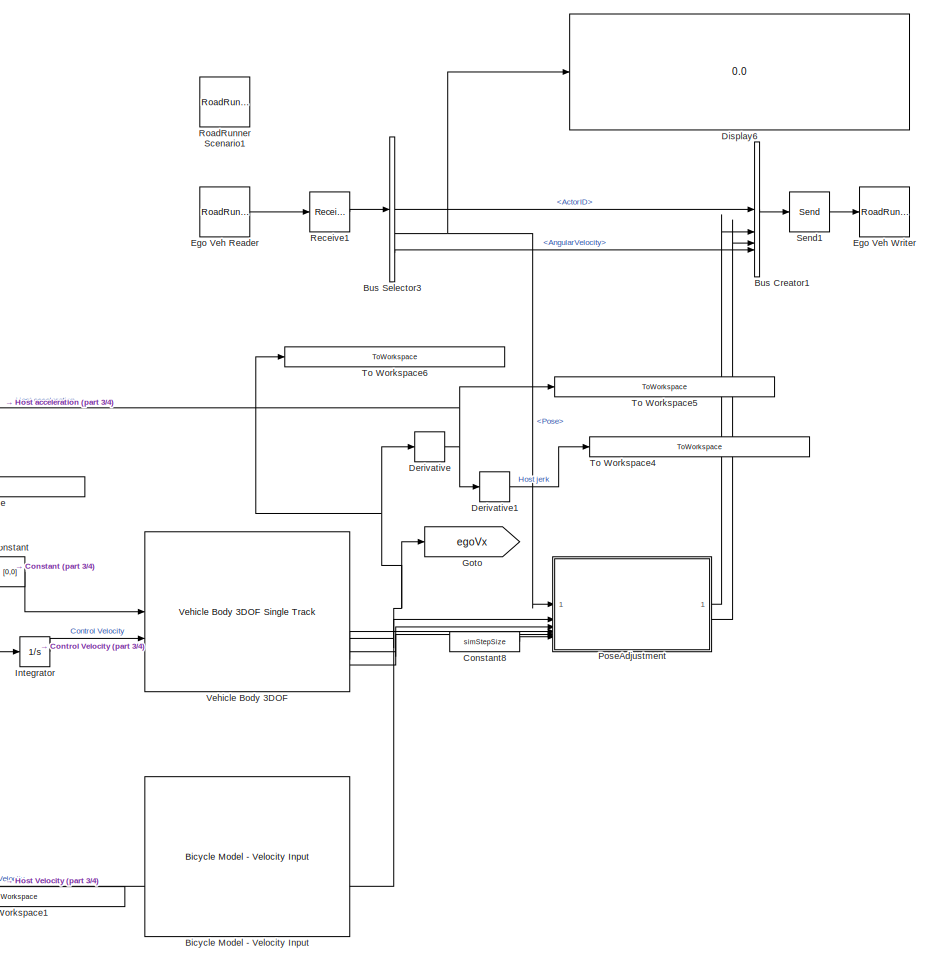
[diagram: root canvas - part 1/4, right side, full height]
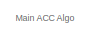
[diagram: root canvas - part 2/4, middle left region]
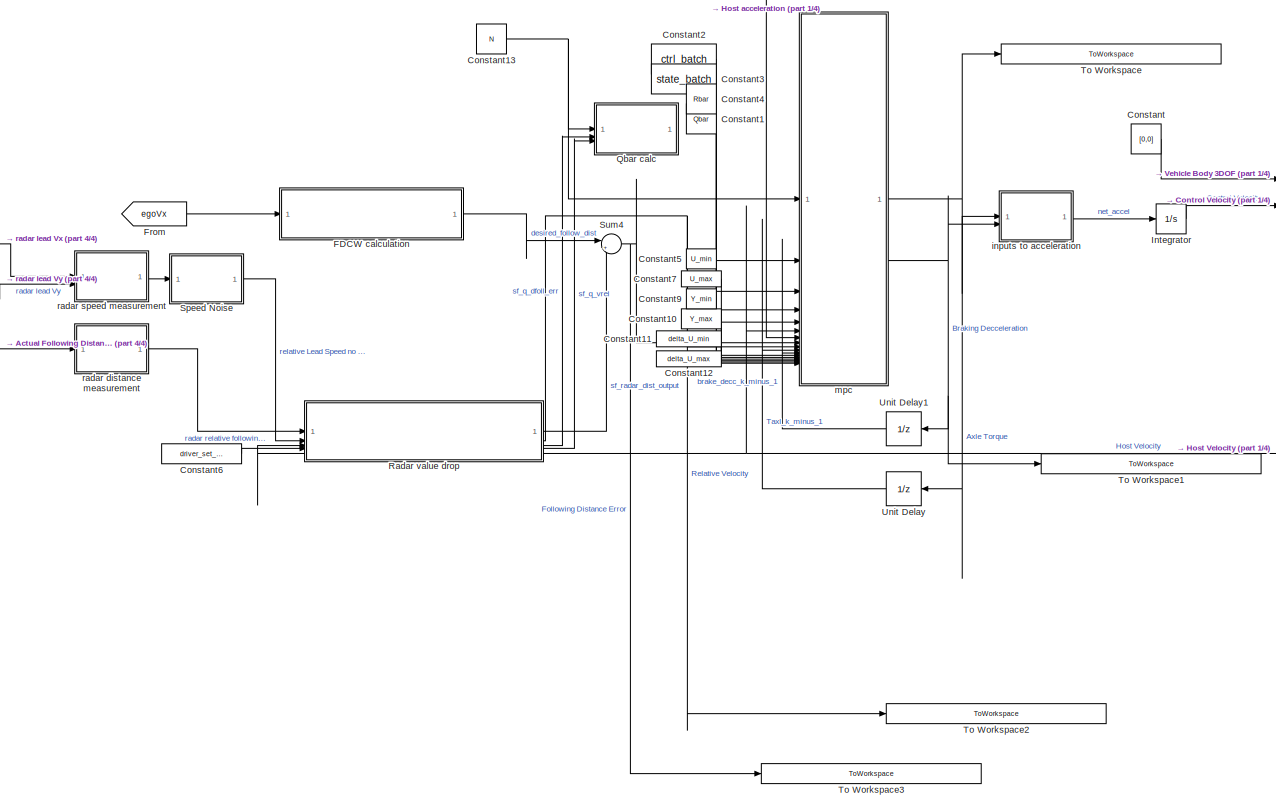
[diagram: root canvas - part 3/4, bottom center region]
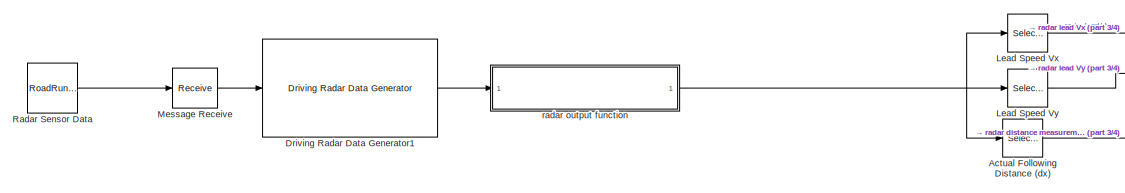
[diagram: root canvas - part 4/4, middle left region]
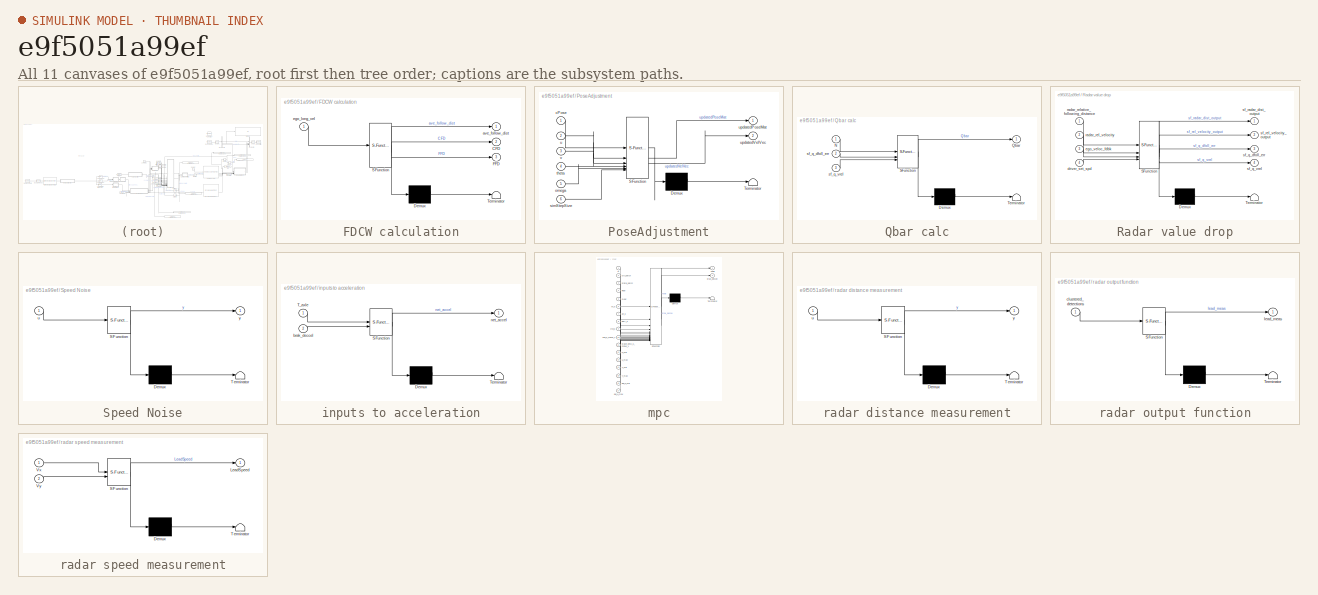
[diagram: thumbnail index - all 11 canvases of the model, root first then tree order]
MODEL slx_e9f5051a99ef
KIND model
CONFIG AbsTol = auto
CONFIG EnableMultiTasking = off
CONFIG FixedStep = .05
CONFIG MaxStep = auto
CONFIG MinStep = auto
CONFIG RelTol = 1e-3
CONFIG SampleTimeConstraint = Unconstrained
CONFIG SolverName = FixedStepAuto
CONFIG StartTime = 0
CONFIG StopTime = 100
BLOCK [Selector] Actual Following Distance (dx)
  IndexOptions = Index vector (dialog)
  Indices = [1]
  InputPortWidth = 6
  OutputSizes = 1
BLOCK [Reference] Bicycle Model - Velocity Input  REF=autolibshared/Bicycle Model - Velocity Input
  Commented = on
  LibrarySourceBlock = drivingscenarioandsensors/Bicycle Model - Velocity Input
  SourceBlock = autolibshared/Bicycle Model - Velocity Input
  SourceType = Vehicle Body 3DOF Lateral
BLOCK [BusCreator] Bus Creator1
  DisplayOption = bar
  InheritFromInputs = off
  Inputs = 4
  NonVirtualBus = on
  OutDataTypeStr = Bus: BusActorRuntime
BLOCK [BusSelector] Bus Selector3
  OutputSignals = ActorID,Pose,Velocity,AngularVelocity
BLOCK [Constant] Constant
  Value = [0,0]
BLOCK [Constant] Constant1
  Value = Qbar
BLOCK [Constant] Constant10
  Value = Y_max
BLOCK [Constant] Constant11
  Value = delta_U_min
BLOCK [Constant] Constant12
  Value = delta_U_max
BLOCK [Constant] Constant13
  Value = N
BLOCK [Constant] Constant2
  Value = ctrl_batch
BLOCK [Constant] Constant3
  Value = state_batch
BLOCK [Constant] Constant4
  Value = Rbar
BLOCK [Constant] Constant5
  Value = U_min
BLOCK [Constant] Constant6
  Value = driver_set_spd
BLOCK [Constant] Constant7
  Value = U_max
BLOCK [Constant] Constant8
  Value = simStepSize
BLOCK [Constant] Constant9
  Value = Y_min
BLOCK [Derivative] Derivative
BLOCK [Derivative] Derivative1
BLOCK [Display] Display6
  Decimation = 1
BLOCK [Reference] Driving Radar Data Generator1  REF=drivingscenarioandsensors/Driving Radar Data Generator
  SourceBlock = drivingscenarioandsensors/Driving Radar Data Generator
  SourceType = drivingRadarDataGenerator
BLOCK [Reference] Ego Veh Reader  REF=roadrunnerscenario/RoadRunner Scenario
Reader
  SourceBlock = roadrunnerscenario/RoadRunner Scenario\nReader
BLOCK [Reference] Ego Veh Writer  REF=roadrunnerscenario/RoadRunner Scenario
Writer
  SourceBlock = roadrunnerscenario/RoadRunner Scenario\nWriter
BLOCK [SubSystem] FDCW calculation
  ErrorFcn = Stateflow.Translate.translate
  PermitHierarchicalResolution = ExplicitOnly
  SFBlockType = MATLAB Function
  TreatAsAtomicUnit = on
BLOCK [Demux] FDCW calculation/ Demux 
  Outputs = 1
BLOCK [S-Function] FDCW calculation/ SFunction 
  EnableBusSupport = on
  FunctionName = sf_sfun
  PortCounts = [1 4]
  SFcnIsStateOwnerBlock = off
  SFunctionDeploymentMode = off
  Tag = Stateflow S-Function 23
BLOCK [Terminator] FDCW calculation/ Terminator 
BLOCK [Outport] FDCW calculation/CFD
  Port = 2
BLOCK [Outport] FDCW calculation/FFD
  Port = 3
BLOCK [Outport] FDCW calculation/ave_follow_dist
BLOCK [Inport] FDCW calculation/ego_long_vel
BLOCK [From] From
  GotoTag = egoVx
BLOCK [Goto] Goto
  GotoTag = egoVx
BLOCK [Integrator] Integrator
BLOCK [Selector] Lead Speed Vx
  IndexOptions = Index vector (dialog)
  Indices = 4
  InputPortWidth = 6
  OutputSizes = 1
BLOCK [Selector] Lead Speed Vy
  IndexOptions = Index vector (dialog)
  Indices = 5
  InputPortWidth = 6
  NameLocation = top
  OutputSizes = 1
BLOCK [Receive] Message Receive
  InputPortMap = u0
  InputPortMessageModes = m
  OutputPortMap = o1
  UseInternalQueue = off
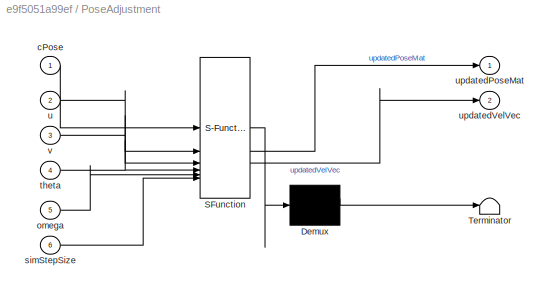
BLOCK [SubSystem] PoseAdjustment
  ErrorFcn = Stateflow.Translate.translate
  PermitHierarchicalResolution = ExplicitOnly
  SFBlockType = MATLAB Function
  TreatAsAtomicUnit = on
BLOCK [Demux] PoseAdjustment/ Demux 
  Outputs = 1
BLOCK [S-Function] PoseAdjustment/ SFunction 
  EnableBusSupport = on
  FunctionName = sf_sfun
  PortCounts = [6 3]
  SFcnIsStateOwnerBlock = off
  SFunctionDeploymentMode = off
  Tag = Stateflow S-Function 12
BLOCK [Terminator] PoseAdjustment/ Terminator 
BLOCK [Inport] PoseAdjustment/cPose
BLOCK [Inport] PoseAdjustment/omega
  Port = 5
BLOCK [Inport] PoseAdjustment/simStepSize
  Port = 6
BLOCK [Inport] PoseAdjustment/theta
  Port = 4
BLOCK [Inport] PoseAdjustment/u
  Port = 2
BLOCK [Outport] PoseAdjustment/updatedPoseMat
BLOCK [Outport] PoseAdjustment/updatedVelVec
  Port = 2
BLOCK [Inport] PoseAdjustment/v
  Port = 3
BLOCK [SubSystem] Qbar calc
  ErrorFcn = Stateflow.Translate.translate
  PermitHierarchicalResolution = ExplicitOnly
  SFBlockType = MATLAB Function
  SystemSampleTime = simStepSize
  TreatAsAtomicUnit = on
BLOCK [Demux] Qbar calc/ Demux 
  Outputs = 1
BLOCK [S-Function] Qbar calc/ SFunction 
  EnableBusSupport = on
  FunctionName = sf_sfun
  PortCounts = [3 2]
  SFcnIsStateOwnerBlock = off
  SFunctionDeploymentMode = off
  Tag = Stateflow S-Function 4
BLOCK [Terminator] Qbar calc/ Terminator 
BLOCK [Inport] Qbar calc/N
BLOCK [Outport] Qbar calc/Qbar
BLOCK [Inport] Qbar calc/sf_q_dfoll_err
  Port = 2
BLOCK [Inport] Qbar calc/sf_q_vrel
  Port = 3
BLOCK [Reference] Radar Sensor Data  REF=roadrunnerscenario/RoadRunner Scenario
Reader
  SourceBlock = roadrunnerscenario/RoadRunner Scenario\nReader
BLOCK [SubSystem] Radar value drop
  ErrorFcn = Stateflow.Translate.translate
  PermitHierarchicalResolution = ExplicitOnly
  SFBlockType = Chart
  TreatAsAtomicUnit = on
BLOCK [Demux] Radar value drop/ Demux 
  Outputs = 1
BLOCK [S-Function] Radar value drop/ SFunction 
  EnableBusSupport = on
  FunctionName = sf_sfun
  PortCounts = [4 5]
  SFcnIsStateOwnerBlock = off
  SFunctionDeploymentMode = off
  Tag = Stateflow S-Function 3
BLOCK [Terminator] Radar value drop/ Terminator 
BLOCK [Inport] Radar value drop/driver_set_spd
  Port = 4
BLOCK [Inport] Radar value drop/ego_veloc_fdbk
  Port = 3
BLOCK [Inport] Radar value drop/radar_rel_velocity
  Port = 2
BLOCK [Inport] Radar value drop/radar_relative_following_distance
BLOCK [Outport] Radar value drop/sf_q_dfoll_err
  Port = 3
BLOCK [Outport] Radar value drop/sf_q_vrel
  Port = 4
BLOCK [Outport] Radar value drop/sf_radar_dist_output
BLOCK [Outport] Radar value drop/sf_rel_velocity_output
  Port = 2
BLOCK [Receive] Receive1
  InputPortMap = u0
  InputPortMessageModes = m
  OutputPortMap = o1
  QueueLength = 1
  QueueOverwriting = on
  QueueType = LIFO
  UseInternalQueue = off
BLOCK [Reference] RoadRunner Scenario1  REF=roadrunnerscenario/RoadRunner Scenario
  SourceBlock = roadrunnerscenario/RoadRunner Scenario
BLOCK [Send] Send1
  InputPortMap = u1
  OutputPortMessageModes = m
BLOCK [SubSystem] Speed Noise
  ErrorFcn = Stateflow.Translate.translate
  PermitHierarchicalResolution = ExplicitOnly
  SFBlockType = MATLAB Function
  TreatAsAtomicUnit = on
BLOCK [Demux] Speed Noise/ Demux 
  Outputs = 1
BLOCK [S-Function] Speed Noise/ SFunction 
  EnableBusSupport = on
  FunctionName = sf_sfun
  PortCounts = [1 2]
  SFcnIsStateOwnerBlock = off
  SFunctionDeploymentMode = off
  Tag = Stateflow S-Function 15
BLOCK [Terminator] Speed Noise/ Terminator 
BLOCK [Inport] Speed Noise/u
BLOCK [Outport] Speed Noise/y
BLOCK [Sum] Sum4
  Inputs = |+-
BLOCK [ToWorkspace] To Workspace
  FixptAsFi = on
  MaxDataPoints = inf
  SampleTime = -1
  SaveFormat = Timeseries
  VariableName = AxleTorque
BLOCK [ToWorkspace] To Workspace1
  FixptAsFi = on
  MaxDataPoints = inf
  SampleTime = -1
  SaveFormat = Timeseries
  VariableName = BrakeDeccel
BLOCK [ToWorkspace] To Workspace2
  FixptAsFi = on
  MaxDataPoints = inf
  SampleTime = -1
  SaveFormat = Timeseries
  VariableName = relativeVel
BLOCK [ToWorkspace] To Workspace3
  FixptAsFi = on
  MaxDataPoints = inf
  SampleTime = -1
  SaveFormat = Timeseries
  VariableName = DistError
BLOCK [ToWorkspace] To Workspace4
  FixptAsFi = on
  MaxDataPoints = inf
  SampleTime = -1
  SaveFormat = Timeseries
  VariableName = HostJerk
BLOCK [ToWorkspace] To Workspace5
  FixptAsFi = on
  MaxDataPoints = inf
  SampleTime = -1
  SaveFormat = Timeseries
  VariableName = HostAccel
BLOCK [ToWorkspace] To Workspace6
  FixptAsFi = on
  MaxDataPoints = inf
  SampleTime = -1
  SaveFormat = Timeseries
  VariableName = HostVelocity
BLOCK [UnitDelay] Unit Delay
  HasFrameUpgradeWarning = on
  SampleTime = -1
BLOCK [UnitDelay] Unit Delay1
  HasFrameUpgradeWarning = on
  SampleTime = -1
BLOCK [Reference] Vehicle Body 3DOF   REF=autolibshared/Vehicle Body 3DOF Single Track
  LibrarySourceBlock = vehdynlibeom/Vehicle Body 3DOF Single Track
  SourceBlock = autolibshared/Vehicle Body 3DOF Single Track
  SourceType = Vehicle Body 3DOF Lateral
BLOCK [SubSystem] inputs to acceleration
  ErrorFcn = Stateflow.Translate.translate
  PermitHierarchicalResolution = ExplicitOnly
  SFBlockType = MATLAB Function
  TreatAsAtomicUnit = on
BLOCK [Demux] inputs to acceleration/ Demux 
  Outputs = 1
BLOCK [S-Function] inputs to acceleration/ SFunction 
  EnableBusSupport = on
  FunctionName = sf_sfun
  PortCounts = [2 2]
  SFcnIsStateOwnerBlock = off
  SFunctionDeploymentMode = off
  Tag = Stateflow S-Function 1
BLOCK [Terminator] inputs to acceleration/ Terminator 
BLOCK [Inport] inputs to acceleration/T_axle
BLOCK [Inport] inputs to acceleration/brak_deccel
  Port = 2
BLOCK [Outport] inputs to acceleration/net_accel
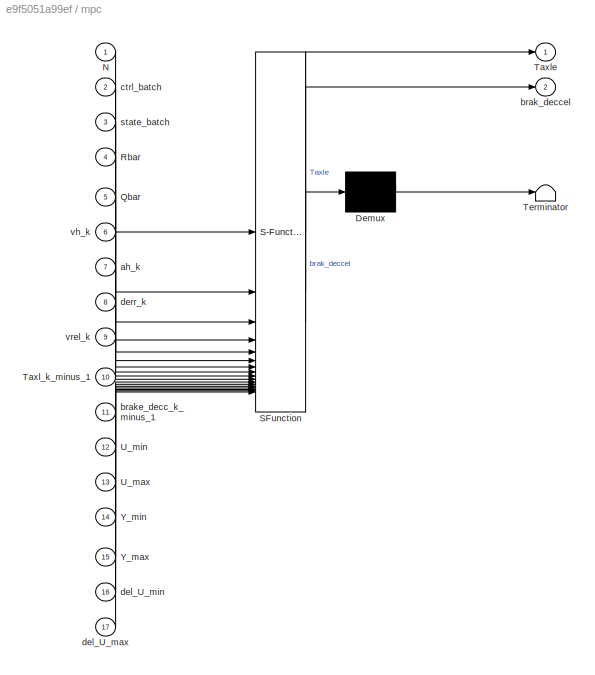
BLOCK [SubSystem] mpc
  ErrorFcn = Stateflow.Translate.translate
  PermitHierarchicalResolution = ExplicitOnly
  SFBlockType = MATLAB Function
  SystemSampleTime = simStepSize
  TreatAsAtomicUnit = on
BLOCK [Demux] mpc/ Demux 
  Outputs = 1
BLOCK [S-Function] mpc/ SFunction 
  EnableBusSupport = on
  FunctionName = sf_sfun
  PortCounts = [17 3]
  SFcnIsStateOwnerBlock = off
  SFunctionDeploymentMode = off
  Tag = Stateflow S-Function 2
BLOCK [Terminator] mpc/ Terminator 
BLOCK [Inport] mpc/N
BLOCK [Inport] mpc/Qbar
  Port = 5
BLOCK [Inport] mpc/Rbar
  Port = 4
BLOCK [Inport] mpc/Taxl_k_minus_1
  Port = 10
BLOCK [Outport] mpc/Taxle
BLOCK [Inport] mpc/U_max
  Port = 13
BLOCK [Inport] mpc/U_min
  Port = 12
BLOCK [Inport] mpc/Y_max
  Port = 15
BLOCK [Inport] mpc/Y_min
  Port = 14
BLOCK [Inport] mpc/ah_k
  Port = 7
BLOCK [Outport] mpc/brak_deccel
  Port = 2
BLOCK [Inport] mpc/brake_decc_k_minus_1
  Port = 11
BLOCK [Inport] mpc/ctrl_batch
  Port = 2
BLOCK [Inport] mpc/del_U_max
  Port = 17
BLOCK [Inport] mpc/del_U_min
  Port = 16
BLOCK [Inport] mpc/derr_k
  Port = 8
BLOCK [Inport] mpc/state_batch
  Port = 3
BLOCK [Inport] mpc/vh_k
  Port = 6
BLOCK [Inport] mpc/vrel_k
  Port = 9
BLOCK [SubSystem] radar distance measurement
  ErrorFcn = Stateflow.Translate.translate
  PermitHierarchicalResolution = ExplicitOnly
  SFBlockType = MATLAB Function
  TreatAsAtomicUnit = on
BLOCK [Demux] radar distance measurement/ Demux 
  Outputs = 1
BLOCK [S-Function] radar distance measurement/ SFunction 
  EnableBusSupport = on
  FunctionName = sf_sfun
  PortCounts = [1 2]
  SFcnIsStateOwnerBlock = off
  SFunctionDeploymentMode = off
  Tag = Stateflow S-Function 13
BLOCK [Terminator] radar distance measurement/ Terminator 
BLOCK [Inport] radar distance measurement/u
BLOCK [Outport] radar distance measurement/y
BLOCK [SubSystem] radar output function
  ErrorFcn = Stateflow.Translate.translate
  PermitHierarchicalResolution = ExplicitOnly
  SFBlockType = MATLAB Function
  SystemSampleTime = simStepSize
  TreatAsAtomicUnit = on
BLOCK [Demux] radar output function/ Demux 
  Outputs = 1
BLOCK [S-Function] radar output function/ SFunction 
  EnableBusSupport = on
  FunctionName = sf_sfun
  PortCounts = [1 2]
  SFcnIsStateOwnerBlock = off
  SFunctionDeploymentMode = off
  Tag = Stateflow S-Function 22
BLOCK [Terminator] radar output function/ Terminator 
BLOCK [Inport] radar output function/clustered_detections
BLOCK [Outport] radar output function/lead_meas
BLOCK [SubSystem] radar speed measurement
  ErrorFcn = Stateflow.Translate.translate
  PermitHierarchicalResolution = ExplicitOnly
  SFBlockType = MATLAB Function
  TreatAsAtomicUnit = on
BLOCK [Demux] radar speed measurement/ Demux 
  Outputs = 1
BLOCK [S-Function] radar speed measurement/ SFunction 
  EnableBusSupport = on
  FunctionName = sf_sfun
  PortCounts = [2 2]
  SFcnIsStateOwnerBlock = off
  SFunctionDeploymentMode = off
  Tag = Stateflow S-Function 14
BLOCK [Terminator] radar speed measurement/ Terminator 
BLOCK [Outport] radar speed measurement/LeadSpeed
BLOCK [Inport] radar speed measurement/Vx
BLOCK [Inport] radar speed measurement/Vy
  Port = 2
ANNOTATION (root): Main ACC Algo
LINE Actual Following Distance (dx):1 -> radar distance measurement:1
LINE Bus Creator1:1 -> Send1:1
LINE Bus Selector3:1 -> Bus Creator1:1
NET Bus Selector3:2 -> Display6:1, PoseAdjustment:1
LINE Bus Selector3:4 -> Bus Creator1:4
LINE Constant10:1 -> mpc:15
LINE Constant11:1 -> mpc:16
LINE Constant12:1 -> mpc:17
NET Constant13:1 -> Qbar calc:1, mpc:1
LINE Constant1:1 -> mpc:5
LINE Constant2:1 -> mpc:2
LINE Constant3:1 -> mpc:3
LINE Constant4:1 -> mpc:4
LINE Constant5:1 -> mpc:12
LINE Constant6:1 -> Radar value drop:4
LINE Constant7:1 -> mpc:13
LINE Constant8:1 -> PoseAdjustment:6
LINE Constant9:1 -> mpc:14
LINE Constant:1 -> Vehicle Body 3DOF :1
LINE Derivative1:1 -> To Workspace4:1
NET Derivative:1 -> Derivative1:1, To Workspace5:1, mpc:7
LINE Driving Radar Data Generator1:1 -> radar output function:1
LINE Ego Veh Reader:1 -> Receive1:1
LINE FDCW calculation:1 -> Sum4:1
LINE From:1 -> FDCW calculation:1
LINE Integrator:1 -> Vehicle Body 3DOF :2
LINE Lead Speed Vx:1 -> radar speed measurement:1
LINE Lead Speed Vy:1 -> radar speed measurement:2
LINE Message Receive:1 -> Driving Radar Data Generator1:1
LINE PoseAdjustment:1 -> Bus Creator1:2
LINE PoseAdjustment:2 -> Bus Creator1:3
LINE Radar Sensor Data:1 -> Message Receive:1
LINE Radar value drop:1 -> Sum4:2
NET Radar value drop:2 -> To Workspace2:1, mpc:9
LINE Radar value drop:3 -> Qbar calc:2
LINE Radar value drop:4 -> Qbar calc:3
LINE Receive1:1 -> Bus Selector3:1
LINE Send1:1 -> Ego Veh Writer:1
LINE Speed Noise:1 -> Radar value drop:2
NET Sum4:1 -> To Workspace3:1, mpc:8
LINE Unit Delay1:1 -> mpc:11
LINE Unit Delay:1 -> mpc:10
NET Vehicle Body 3DOF :2 -> Derivative:1, Goto:1, PoseAdjustment:2, Radar value drop:3, To Workspace6:1, mpc:6
LINE Vehicle Body 3DOF :3 -> PoseAdjustment:3
LINE Vehicle Body 3DOF :4 -> PoseAdjustment:4
LINE Vehicle Body 3DOF :5 -> PoseAdjustment:5
LINE inputs to acceleration:1 -> Integrator:1
NET mpc:1 -> To Workspace:1, Unit Delay:1, inputs to acceleration:1
NET mpc:2 -> To Workspace1:1, Unit Delay1:1, inputs to acceleration:2
LINE radar distance measurement:1 -> Radar value drop:1
NET radar output function:1 -> Actual Following Distance (dx):1, Lead Speed Vx:1, Lead Speed Vy:1
LINE radar speed measurement:1 -> Speed Noise:1
note: NET lines group one-source signal fan-out (src -> all destinations, sorted); 1:1 wires keep LINE
CHART radar distance measurement states=1 transitions=1
  STATE_LABEL 'eML_blk_kernel()'
  STATE_LABEL 'SCRIPT:\nfunction y = removeSpikes(u)\n\n    persistent buffer;\n    persistent bufferIndex;\n    threshold = 2;\n    windowSize = 15;\n    % windowSize = 4;\n    \n    if isempty(buffer)\n        buffer = zeros(1, windowSize);\n        bufferIndex = 1;\n    end\n    \n    % Update buffer with new value\n    buffer(bufferIndex) = u;\n    bufferIndex = mod(bufferIndex, windowSize) + 1;\n    \n    % Calculate the med...<+257ch>'
CHART radar speed measurement states=1 transitions=1
  STATE_LABEL 'eML_blk_kernel()'
  STATE_LABEL 'SCRIPT:\nfunction LeadSpeed = fcn(Vx, Vy)\n\nif Vx == 0 && Vy == 0 \n    Vx = 0.01;\n    Vy = 0.01;\nelseif Vy == 0\n    Vy = 0.01;\nelseif Vx == 0\n    Vx = 0.01;\nend\n\nif Vx <= 0\n    LeadSpeed = -sqrt(Vx^2 + Vy^2);\nelse\n    LeadSpeed = sqrt(Vx^2 + Vy^2);\nend\n\n'
CHART Speed Noise states=1 transitions=1
  STATE_LABEL 'eML_blk_kernel()'
  STATE_LABEL 'SCRIPT:\nfunction y = removeSpikes(u)\n    % removeSpikes - Removes spikes from a scalar signal based on a threshold\n    %\n    % Inputs:\n    %    u - The input signal (scalar)\n    %    threshold - The threshold value to detect spikes\n    %    windowSize - The size of the window for calculating the median\n    %\n    % Outputs:\n    %    y - The filtered signal with spikes removed\n\n    % Declare persist...<+655ch>'
CHART radar output function states=1 transitions=1
  STATE_LABEL 'eML_blk_kernel()'
  STATE_LABEL 'SCRIPT:\nfunction lead_meas = fcn(clustered_detections)\n\nlead_det = clustered_detections.Detections(1);\nlead_meas = lead_det.Measurement;\n\n% relative_dist = sqrt(lead_det.Measurement(1)^2 + lead_det.Measurement(2)^2); % rel_dist = sqrt(x^2+y^2)\n% relative_speed = sqrt(lead_det.Measurement(4)^2 + lead_det.Measurement(5)^2);\nend'
CHART FDCW calculation states=1 transitions=1
  STATE_LABEL 'eML_blk_kernel()'
  STATE_LABEL "SCRIPT:\n% Function to determine the closest (CFD) and furthest follow distance (FFD) for the\n% ego vehicle relative to the lead vehicle given the ego vehicle's current\n% velocity\n\n% This function outputs the middle distance value between the CFD and FFD\n% and those values respectively as well\n\nfunction [ave_follow_dist, CFD, FFD] = fcn(ego_long_vel)\n    persistent dist_history window_size smoothin...<+1178ch>"
CHART inputs to acceleration states=1 transitions=1
  STATE_LABEL 'eML_blk_kernel()'
  STATE_LABEL 'SCRIPT:\nfunction net_accel = fcn(T_axle, brak_deccel)\nm = 2630.84;\nwhl_rad = 0.378;\n\nfwd_accel = T_axle/(m*whl_rad);\n\nnet_accel = fwd_accel + brak_deccel;\n'
CHART mpc states=1 transitions=1
  STATE_LABEL 'eML_blk_kernel()'
  STATE_LABEL "SCRIPT:\nfunction [Taxle, brak_deccel] = mpc(N,ctrl_batch, state_batch, Rbar, Qbar, vh_k, ah_k, derr_k, vrel_k, Taxl_k_minus_1, brake_decc_k_minus_1, U_min, U_max, Y_min, Y_max, del_U_min, del_U_max)\n% Defining MPC and system variables\nnum_ctrl = 2;\n\nstate_vec_curr = [vh_k, ah_k, derr_k, vrel_k, Taxl_k_minus_1, brake_decc_k_minus_1]';\n\nH = 2*(ctrl_batch' * Qbar * ctrl_batch + Rbar); % symmetric Hes...<+2995ch>"
CHART Radar value drop states=2 transitions=3
  STATE_LABEL 'Radar_State_Lead_Veh_Present_and_Detected\n\nsf_radar_dist_output = radar_relative_following_distance;\nsf_rel_velocity_output = radar_rel_velocity;\nsf_q_dfoll_err = 100;\nsf_q_vrel = 100;'
  STATE_LABEL 'Output_Spoof_To_Keep_Moving\n\nsf_radar_dist_output = 100;\nset_spd_err = driver_set_spd - ego_veloc_fdbk;\nsf_rel_velocity_output = set_spd_err;\nsf_q_dfoll_err = 0;\nsf_q_vrel = 40;'
CHART Qbar calc states=1 transitions=1
  STATE_LABEL 'eML_blk_kernel()'
  STATE_LABEL 'SCRIPT:\nfunction Qbar = fcn(N, sf_q_dfoll_err, sf_q_vrel) \n    N = 5;\n    q_vh = 0;\n    q_ah = 20;\n    % q_dfoll = 1000; % Set from stateflow\n    % q_vrel = 100;\n    \n    Q = diag([q_vh, q_ah, sf_q_dfoll_err, sf_q_vrel]);\n    Qbar = kron(eye(N),Q);\n'
CHART PoseAdjustment states=1 transitions=1
  STATE_LABEL 'eML_blk_kernel()'
  STATE_LABEL 'SCRIPT:\nfunction [updatedPoseMat, updatedVelVec] = RRPoseAdjustment(cPose, u, v, theta, omega, simStepSize)\n    thetad = theta + omega*simStepSize;\n    xd = (u*cos(theta) - v*sin(theta))*simStepSize;\n    yd = (u*sin(theta) + v*cos(theta))*simStepSize;\n    pose_mat = [cos(-thetad) -sin(-thetad) 0 (yd+cPose(1,4)); sin(-thetad) cos(-thetad) 0 (xd+cPose(2,4)); 0 0 1 0; 0 0 0 1];\n    updatedPoseMat = p...<+108ch>'
CHART  states=0 transitions=0
CHART  states=0 transitions=0
CHART  states=0 transitions=0
CHART  states=0 transitions=0
CHART  states=0 transitions=0
CHART  states=0 transitions=0
CHART  states=0 transitions=0
CHART  states=0 transitions=0
CHART  states=0 transitions=0
CHART  states=0 transitions=0
